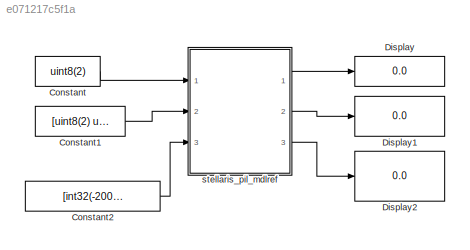
MODEL slx_e071217c5f1a
KIND model
BLOCK [Constant] Constant
  SampleTime = 0.1
  Value = uint8(2)
BLOCK [Constant] Constant1
  SampleTime = 0.1
  Value = [uint8(2) uint8(4)]
BLOCK [Constant] Constant2
  SampleTime = 0.1
  Value = [int32(-200) int32(400)]
BLOCK [Display] Display
  Decimation = 1
  Lockdown = off
  Ports = [1]
BLOCK [Display] Display1
  Decimation = 1
  Lockdown = off
  Ports = [1]
BLOCK [Display] Display2
  Decimation = 1
  Lockdown = off
  Ports = [1]
BLOCK [ModelReference] stellaris_pil_mdlref
  CopyOfModelName = stellaris_pil_mdlref
  DefaultDataLogging = on
  ModelNameDialog = stellaris_pil_mdlref
  ModelReferenceVersion = 1.14
  Ports = [3, 3]
LINE Constant1:1 -> stellaris_pil_mdlref:2
LINE Constant2:1 -> stellaris_pil_mdlref:3
LINE Constant:1 -> stellaris_pil_mdlref:1
LINE stellaris_pil_mdlref:1 -> Display:1
LINE stellaris_pil_mdlref:2 -> Display1:1
LINE stellaris_pil_mdlref:3 -> Display2:1
